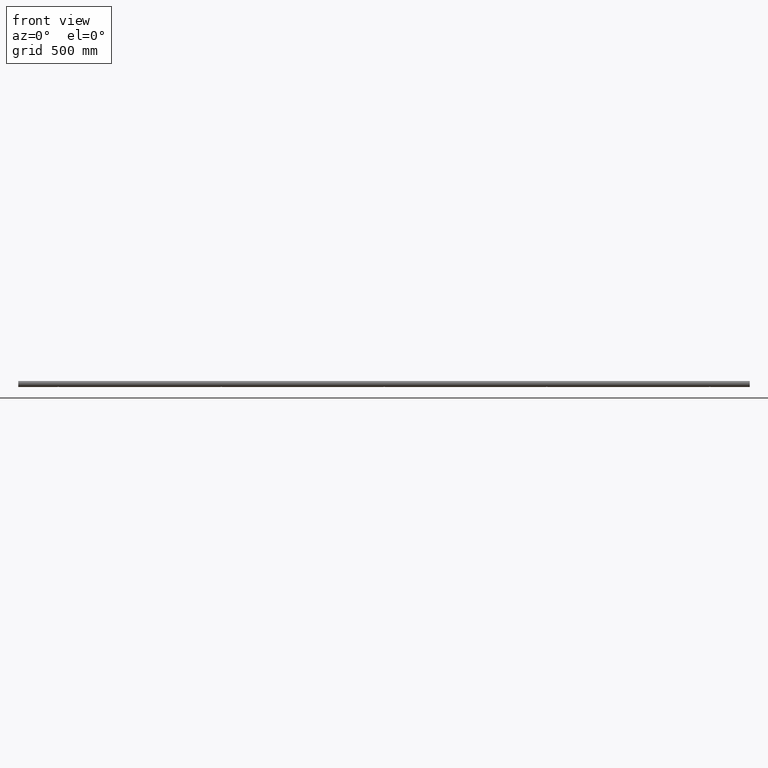
[diagram: clean part render]
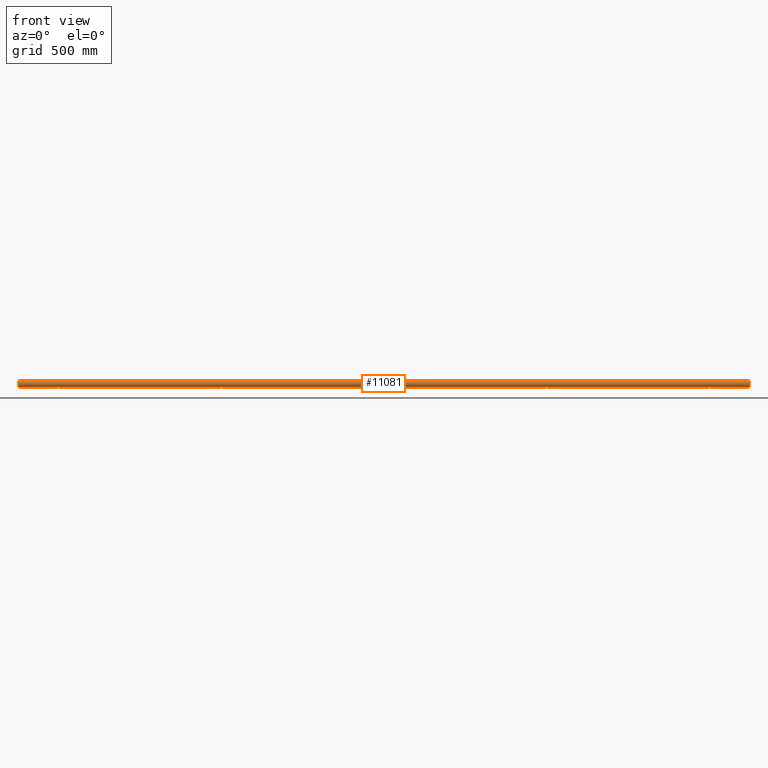
[diagram: same view with one face highlighted and labeled with its STEP entity id]
A machine part, front view. The second image highlights one B-rep face of the part: STEP entity #11081.
In plain terms, the highlighted cylindrical surface (edge-blend (fillet) strip) has radius 12.5 mm, axis along (-1, -0, -0).
Its self-contained STEP definition (entity closure, byte-faithful):
#106 = CARTESIAN_POINT ( 'NONE',  ( 2.090412540924479600, -2.718083123427877300, -12.20511272832640000 ) ) ;
#231 = CARTESIAN_POINT ( 'NONE',  ( 693.4000000000000900, 1.530817147818667500E-015, -12.50000000000000000 ) ) ;
#269 = EDGE_CURVE ( 'NONE', #14058, #1977, #1271, .T. ) ;
#306 = CARTESIAN_POINT ( 'NONE',  ( 1550.000000000000000, 0.0000000000000000000, 0.0000000000000000000 ) ) ;
#332 = DIRECTION ( 'NONE',  ( 0.0000000000000000000, 0.0000000000000000000, 1.000000000000000000 ) ) ;
#412 = VERTEX_POINT ( 'NONE', #3174 ) ;
#543 = CARTESIAN_POINT ( 'NONE',  ( -3.399999999999987900, -3.085611381634476200E-019, -12.50000000000000000 ) ) ;
#576 = EDGE_CURVE ( 'NONE', #9384, #15832, #13231, .T. ) ;
#585 = ORIENTED_EDGE ( 'NONE', *, *, #11902, .T. ) ;
#603 = CARTESIAN_POINT ( 'NONE',  ( -688.2830839163814300, -2.968529363370429100, -12.14369076542070200 ) ) ;
#648 = VERTEX_POINT ( 'NONE', #1802 ) ;
#655 = CARTESIAN_POINT ( 'NONE',  ( -690.2244276377462000, -3.399902734060280500, -12.02874313505274300 ) ) ;
#721 = VECTOR ( 'NONE', #1426, 1000.000000000000000 ) ;
#760 = CARTESIAN_POINT ( 'NONE',  ( -686.9451166598307700, -1.508976641703934500, -12.41029900232306300 ) ) ;
#820 = CARTESIAN_POINT ( 'NONE',  ( -690.4457652610850600, -3.378089484675303100, -12.03497327294810600 ) ) ;
#902 = EDGE_CURVE ( 'NONE', #14058, #412, #9172, .T. ) ;
#921 = CARTESIAN_POINT ( 'NONE',  ( 1378.294547359547300, -2.949803944381774300, -12.14763061015489300 ) ) ;
#927 = ORIENTED_EDGE ( 'NONE', *, *, #6808, .F. ) ;
#1011 = CARTESIAN_POINT ( 'NONE',  ( 692.7019317768557600, -2.075686207071268300, -12.32785800513539000 ) ) ;
#1046 = CARTESIAN_POINT ( 'NONE',  ( -3.377732997452060500, -0.4476042234037460000, -12.49389134214153100 ) ) ;
#1198 = CARTESIAN_POINT ( 'NONE',  ( 1.716916083618982300, -2.968529363370417500, -12.14369076542070800 ) ) ;
#1271 = LINE ( 'NONE', #2999, #11084 ) ;
#1280 = VERTEX_POINT ( 'NONE', #2318 ) ;
#1297 = VERTEX_POINT ( 'NONE', #11122 ) ;
#1317 = DIRECTION ( 'NONE',  ( 0.0000000000000000000, 0.0000000000000000000, -1.000000000000000000 ) ) ;
#1407 = CARTESIAN_POINT ( 'NONE',  ( -2.702327577358867700, -2.075249282755369200, -12.32794158140094100 ) ) ;
#1426 = DIRECTION ( 'NONE',  ( -1.000000000000000000, -0.0000000000000000000, -0.0000000000000000000 ) ) ;
#1639 = CARTESIAN_POINT ( 'NONE',  ( -1383.400000000000300, -0.2257922536967062200, -12.50000000000000000 ) ) ;
#1802 = CARTESIAN_POINT ( 'NONE',  ( -693.3999999999999800, 1.240253457150525300E-014, -12.50000000000000000 ) ) ;
#1828 = EDGE_CURVE ( 'NONE', #7669, #1977, #14576, .T. ) ;
#1977 = VERTEX_POINT ( 'NONE', #231 ) ;
#2049 = EDGE_CURVE ( 'NONE', #13836, #7710, #12762, .T. ) ;
#2066 = CARTESIAN_POINT ( 'NONE',  ( -1377.909587459075700, -2.718083123427898200, -12.20511272832639400 ) ) ;
#2081 = CARTESIAN_POINT ( 'NONE',  ( -687.0519466653322500, -1.708183272649670800, -12.38412960736629000 ) ) ;
#2175 = CARTESIAN_POINT ( 'NONE',  ( 1379.775572362253600, -3.399902734060398200, -12.02874313505270900 ) ) ;
#2199 = VECTOR ( 'NONE', #8029, 1000.000000000000000 ) ;
#2220 = CARTESIAN_POINT ( 'NONE',  ( 687.0508764755738900, -1.706430297025199200, -12.38438124661081100 ) ) ;
#2238 = CARTESIAN_POINT ( 'NONE',  ( 1376.600000000000100, -0.2257922536967062200, -12.50000000000000000 ) ) ;
#2273 = CARTESIAN_POINT ( 'NONE',  ( 692.9480533346683200, -1.708183272649670600, -12.38412960736629600 ) ) ;
#2289 = CARTESIAN_POINT ( 'NONE',  ( -1376.945116659831000, -1.508976641703940700, -12.41029900232306300 ) ) ;
#2303 = CARTESIAN_POINT ( 'NONE',  ( -3.224770506350070200, -1.100213052444122700, -12.45320411249670300 ) ) ;
#2318 = CARTESIAN_POINT ( 'NONE',  ( 3.399999999999987900, 1.530817148184698900E-015, -12.50000000000000000 ) ) ;
#2321 = CARTESIAN_POINT ( 'NONE',  ( 690.4480069142264300, -3.377710602246517100, -12.03507891894724400 ) ) ;
#2381 = CARTESIAN_POINT ( 'NONE',  ( 689.5542347389152800, -3.378089484675302700, -12.03497327294810600 ) ) ;
#2463 = VERTEX_POINT ( 'NONE', #11539 ) ;
#2475 = CARTESIAN_POINT ( 'NONE',  ( -1381.705452640452700, -2.949803944381774300, -12.14763061015489300 ) ) ;
#2523 = CARTESIAN_POINT ( 'NONE',  ( -1.705452640452510800, -2.949803944381699700, -12.14763061015491800 ) ) ;
#2549 = FACE_OUTER_BOUND ( 'NONE', #11408, .T. ) ;
#2577 = CARTESIAN_POINT ( 'NONE',  ( -2.076778553575692900, -2.701278004671923600, -12.20530089315860600 ) ) ;
#2689 = CARTESIAN_POINT ( 'NONE',  ( 3.289946059124464000, -0.8867016201782708100, -12.47044329820943200 ) ) ;
#2999 = CARTESIAN_POINT ( 'NONE',  ( 1550.000000000000000, 1.530808498934191500E-015, -12.50000000000000000 ) ) ;
#3174 = CARTESIAN_POINT ( 'NONE',  ( 1383.400000000000100, 1.530817149939125600E-015, -12.50000000000000000 ) ) ;
#3196 = CARTESIAN_POINT ( 'NONE',  ( -686.7747797971387600, -1.098761744103554900, -12.45332302889326900 ) ) ;
#3250 = CARTESIAN_POINT ( 'NONE',  ( -691.7054526404525600, -2.949803944381664600, -12.14763061015493100 ) ) ;
#3361 = CARTESIAN_POINT ( 'NONE',  ( -689.7785291907569000, -3.400096623084107900, -12.02868833097945100 ) ) ;
#3460 = CARTESIAN_POINT ( 'NONE',  ( -1376.599999999999900, -0.2225510969395967400, -12.50000000000000000 ) ) ;
#3461 = CARTESIAN_POINT ( 'NONE',  ( 1377.297672422640500, -2.075249282755465200, -12.32794158140092100 ) ) ;
#3500 = VECTOR ( 'NONE', #7631, 1000.000000000000000 ) ;
#3510 = CARTESIAN_POINT ( 'NONE',  ( -1379.115041381117200, -3.290362799234904000, -12.05925230465088800 ) ) ;
#3511 = CARTESIAN_POINT ( 'NONE',  ( 1382.090412540924900, -2.718083123427898200, -12.20511272832639400 ) ) ;
#3541 = CARTESIAN_POINT ( 'NONE',  ( -1380.224427637745300, -3.399902734060398200, -12.02874313505270900 ) ) ;
#3552 = CARTESIAN_POINT ( 'NONE',  ( 693.3777285827636700, -0.4482571319650472400, -12.49388896063694300 ) ) ;
#3606 = CARTESIAN_POINT ( 'NONE',  ( 688.8993935230674900, -3.224536294380859300, -12.07725403179794700 ) ) ;
#3654 = CARTESIAN_POINT ( 'NONE',  ( 693.0548833401692300, -1.508976641703934500, -12.41029900232306300 ) ) ;
#3686 = CARTESIAN_POINT ( 'NONE',  ( 3.399999999999987000, -0.2225510969395936800, -12.50000000000000000 ) ) ;
#3846 = CARTESIAN_POINT ( 'NONE',  ( 3.054883340169159300, -1.508976641703949000, -12.41029900232305900 ) ) ;
#4106 = DIRECTION ( 'NONE',  ( 0.0000000000000000000, 0.0000000000000000000, -1.000000000000000000 ) ) ;
#4186 = CARTESIAN_POINT ( 'NONE',  ( -1383.290681121150600, -0.8836557597777843200, -12.47063843226398400 ) ) ;
#4351 = CARTESIAN_POINT ( 'NONE',  ( -1550.000000000000000, 0.0000000000000000000, 12.50000000000000000 ) ) ;
#4491 = CARTESIAN_POINT ( 'NONE',  ( 1550.000000000000000, 1.530808498934191500E-015, -12.50000000000000000 ) ) ;
#4555 = CARTESIAN_POINT ( 'NONE',  ( -1383.053670010980300, -1.511526726006589200, -12.40999792042049600 ) ) ;
#4604 = CARTESIAN_POINT ( 'NONE',  ( 1383.377728582763900, -0.4482571319650909300, -12.49388896063694400 ) ) ;
#4620 = CARTESIAN_POINT ( 'NONE',  ( -691.5092891430321100, -3.054671048340733600, -12.12133177702797600 ) ) ;
#4655 = CARTESIAN_POINT ( 'NONE',  ( -1377.298068223144800, -2.075686207071323800, -12.32785800513537900 ) ) ;
#4656 = CARTESIAN_POINT ( 'NONE',  ( 1382.562011329120400, -2.246229744202111100, -12.29756642919713100 ) ) ;
#4713 = CARTESIAN_POINT ( 'NONE',  ( 1382.948053334668000, -1.708183272649724100, -12.38412960736628300 ) ) ;
#4717 = CARTESIAN_POINT ( 'NONE',  ( -1380.885184354465100, -3.290386587176945500, -12.05924650854999100 ) ) ;
#4753 = CARTESIAN_POINT ( 'NONE',  ( 689.1148156455342400, -3.290386587176774100, -12.05924650855003400 ) ) ;
#4777 = CARTESIAN_POINT ( 'NONE',  ( 1381.716916083619500, -2.968529363370432200, -12.14369076542070600 ) ) ;
#4812 = CARTESIAN_POINT ( 'NONE',  ( 693.2899460591244200, -0.8867016201782428300, -12.47044329820943000 ) ) ;
#4954 = CARTESIAN_POINT ( 'NONE',  ( 2.562011329120406100, -2.246229744202104900, -12.29756642919713400 ) ) ;
#5109 = CARTESIAN_POINT ( 'NONE',  ( -2.949123524426435800, -1.706430297025202800, -12.38438124661081100 ) ) ;
#5173 = CARTESIAN_POINT ( 'NONE',  ( 3.377728582763543000, -0.4482571319650707200, -12.49388896063694600 ) ) ;
#5291 = LINE ( 'NONE', #4491, #8814 ) ;
#5317 = AXIS2_PLACEMENT_3D ( 'NONE', #306, #11423, #4106 ) ;
#5392 = ORIENTED_EDGE ( 'NONE', *, *, #269, .F. ) ;
#5562 = CARTESIAN_POINT ( 'NONE',  ( -1383.400000000000100, -9.932824226667062300E-015, -12.50000000000000000 ) ) ;
#5623 = CARTESIAN_POINT ( 'NONE',  ( -693.3777329974520900, -0.4476042234037525000, -12.49389134214153400 ) ) ;
#5844 = CARTESIAN_POINT ( 'NONE',  ( -686.6000000000001400, -0.2225510969395918800, -12.50000000000000400 ) ) ;
#5882 = CARTESIAN_POINT ( 'NONE',  ( 1380.221470809242900, -3.400096623084209600, -12.02868833097941500 ) ) ;
#5892 = CARTESIAN_POINT ( 'NONE',  ( -688.9025609335545800, -3.225774224939495800, -12.07692960344454400 ) ) ;
#5904 = CARTESIAN_POINT ( 'NONE',  ( -1382.076778553575200, -2.701278004672001700, -12.20530089315858800 ) ) ;
#5993 = CARTESIAN_POINT ( 'NONE',  ( 1379.114815645534000, -3.290386587176945500, -12.05924650854999100 ) ) ;
#6184 = CARTESIAN_POINT ( 'NONE',  ( 693.2252202028615800, -1.098761744103555300, -12.45332302889326900 ) ) ;
#6229 = DIRECTION ( 'NONE',  ( 1.000000000000000000, 0.0000000000000000000, 0.0000000000000000000 ) ) ;
#6363 = CARTESIAN_POINT ( 'NONE',  ( 0.2214708092432761400, -3.400096623084132700, -12.02868833097944200 ) ) ;
#6379 = CARTESIAN_POINT ( 'NONE',  ( -1550.000000000000000, 0.0000000000000000000, 0.0000000000000000000 ) ) ;
#6477 = CIRCLE ( 'NONE', #8602, 12.50000000000000000 ) ;
#6695 = DIRECTION ( 'NONE',  ( -1.000000000000000000, -0.0000000000000000000, -0.0000000000000000000 ) ) ;
#6767 = B_SPLINE_CURVE_WITH_KNOTS ( 'NONE', 3,
 ( #9766, #8579, #1046, #9816, #2303, #11323, #5109, #1407, #13861, #7625, #2577, #2523, #8732, #15167, #12415, #9974, #16228, #6363, #11220, #12630, #10181, #1198, #106, #4954, #13704, #10133, #3846, #8837, #2689, #5173, #3686, #8895 ),
 .UNSPECIFIED., .F., .F.,
 ( 4, 2, 2, 2, 2, 2, 2, 2, 2, 2, 2, 2, 2, 2, 2, 4 ),
 ( 7.473672456940466300E-020, 0.0006675304755107752300, 0.001335060951021550200, 0.002002591426532325300, 0.002670121902043100100, 0.003337652377553874400, 0.004005182853064649700, 0.004672713328575424900, 0.005340243804086200100, 0.006007774279596974500, 0.006675304755107750600, 0.008010365706129299300, 0.008677896181640073700, 0.009345426657150846300, 0.01001295713266162100, 0.01068048760817239500 ),
 .UNSPECIFIED. ) ;
#6786 = ORIENTED_EDGE ( 'NONE', *, *, #9976, .T. ) ;
#6808 = EDGE_CURVE ( 'NONE', #1297, #14030, #13736, .T. ) ;
#6990 = CARTESIAN_POINT ( 'NONE',  ( -686.6000000000001400, 1.530817147818667500E-015, -12.50000000000000000 ) ) ;
#7024 = ORIENTED_EDGE ( 'NONE', *, *, #2049, .F. ) ;
#7081 = CARTESIAN_POINT ( 'NONE',  ( -1381.100606476932400, -3.224536294380904600, -12.07725403179793100 ) ) ;
#7093 = CARTESIAN_POINT ( 'NONE',  ( -687.2980682231448100, -2.075686207071267800, -12.32785800513538800 ) ) ;
#7130 = CARTESIAN_POINT ( 'NONE',  ( 1377.923221446424100, -2.701278004672001700, -12.20530089315858800 ) ) ;
#7219 = CARTESIAN_POINT ( 'NONE',  ( 689.7755723622542500, -3.399902734060280500, -12.02874313505274300 ) ) ;
#7269 = CARTESIAN_POINT ( 'NONE',  ( 690.8849586188831600, -3.290362799234757100, -12.05925230465093600 ) ) ;
#7290 = CARTESIAN_POINT ( 'NONE',  ( -1378.902560933554000, -3.225774224939542500, -12.07692960344453300 ) ) ;
#7292 = CARTESIAN_POINT ( 'NONE',  ( 1383.400000000000100, -0.2225510969395967400, -12.50000000000000000 ) ) ;
#7330 = ORIENTED_EDGE ( 'NONE', *, *, #902, .T. ) ;
#7335 = CARTESIAN_POINT ( 'NONE',  ( 692.0904125409247200, -2.718083123427828400, -12.20511272832640500 ) ) ;
#7390 = CARTESIAN_POINT ( 'NONE',  ( 691.7169160836188000, -2.968529363370429100, -12.14369076542070200 ) ) ;
#7415 = CARTESIAN_POINT ( 'NONE',  ( -1383.400000000000100, -9.932824226667062300E-015, -12.50000000000000000 ) ) ;
#7436 = CARTESIAN_POINT ( 'NONE',  ( 688.2945473595476600, -2.949803944381664200, -12.14763061015492900 ) ) ;
#7586 = EDGE_CURVE ( 'NONE', #9384, #2463, #8862, .T. ) ;
#7625 = CARTESIAN_POINT ( 'NONE',  ( -2.247283181778617000, -2.560938656392451200, -12.23588396395594200 ) ) ;
#7631 = DIRECTION ( 'NONE',  ( -1.000000000000000000, -0.0000000000000000000, -0.0000000000000000000 ) ) ;
#7669 = VERTEX_POINT ( 'NONE', #10010 ) ;
#7708 = CARTESIAN_POINT ( 'NONE',  ( 1550.000000000000000, 1.530808498934191500E-015, -12.50000000000000000 ) ) ;
#7710 = VERTEX_POINT ( 'NONE', #10877 ) ;
#8022 = CARTESIAN_POINT ( 'NONE',  ( -693.3999999999999800, 1.240253457150525300E-014, -12.50000000000000000 ) ) ;
#8029 = DIRECTION ( 'NONE',  ( -1.000000000000000000, -0.0000000000000000000, -0.0000000000000000000 ) ) ;
#8075 = CARTESIAN_POINT ( 'NONE',  ( -1383.377732997452300, -0.4476042234037826400, -12.49389134214153100 ) ) ;
#8203 = LINE ( 'NONE', #7708, #721 ) ;
#8243 = EDGE_CURVE ( 'NONE', #1297, #14933, #12874, .T. ) ;
#8297 = CARTESIAN_POINT ( 'NONE',  ( -692.5594400543210400, -2.248989797497585200, -12.29704468854005500 ) ) ;
#8311 = EDGE_CURVE ( 'NONE', #648, #2463, #8203, .T. ) ;
#8387 = CARTESIAN_POINT ( 'NONE',  ( 1380.448006914225700, -3.377710602246636600, -12.03507891894720800 ) ) ;
#8437 = CARTESIAN_POINT ( 'NONE',  ( -1377.437988670878900, -2.246229744202111100, -12.29756642919713100 ) ) ;
#8483 = CARTESIAN_POINT ( 'NONE',  ( 690.2214708092434400, -3.400096623084107000, -12.02868833097944700 ) ) ;
#8504 = CARTESIAN_POINT ( 'NONE',  ( 1379.554234738915300, -3.378089484675443900, -12.03497327294806500 ) ) ;
#8556 = CARTESIAN_POINT ( 'NONE',  ( -1376.710053940875200, -0.8867016201782891300, -12.47044329820942800 ) ) ;
#8579 = CARTESIAN_POINT ( 'NONE',  ( -3.399999999999987900, -0.2257922536967011100, -12.50000000000000200 ) ) ;
#8602 = AXIS2_PLACEMENT_3D ( 'NONE', #6379, #6229, #1317 ) ;
#8643 = CARTESIAN_POINT ( 'NONE',  ( 692.5620113291205400, -2.246229744202054700, -12.29756642919714300 ) ) ;
#8732 = CARTESIAN_POINT ( 'NONE',  ( -1.509289143032030800, -3.054671048340748700, -12.12133177702796900 ) ) ;
#8782 = VECTOR ( 'NONE', #13718, 1000.000000000000000 ) ;
#8814 = VECTOR ( 'NONE', #13246, 1000.000000000000000 ) ;
#8837 = CARTESIAN_POINT ( 'NONE',  ( 3.225220202861458100, -1.098761744103564900, -12.45332302889326700 ) ) ;
#8862 = B_SPLINE_CURVE_WITH_KNOTS ( 'NONE', 3,
 ( #5562, #1639, #8075, #4186, #12808, #4555, #14471, #11918, #15842, #15101, #5904, #2475, #9003, #7081, #4717, #14826, #3541, #15296, #13423, #3510, #7290, #12288, #2066, #8437, #4655, #16051, #2289, #12190, #8556, #13302, #3460, #11040 ),
 .UNSPECIFIED., .F., .F.,
 ( 4, 2, 2, 2, 2, 2, 2, 2, 2, 2, 2, 2, 2, 2, 2, 4 ),
 ( 9.720594809790037100E-018, 0.0006675304755108549200, 0.001335060951021700100, 0.002002591426532545100, 0.002670121902043390200, 0.003337652377554235300, 0.004005182853065080700, 0.004672713328575925400, 0.005340243804086770900, 0.006007774279597616300, 0.006675304755108461000, 0.008010365706129545700, 0.008677896181640320000, 0.009345426657151094400, 0.01001295713266186900, 0.01068048760817264100 ),
 .UNSPECIFIED. ) ;
#8895 = CARTESIAN_POINT ( 'NONE',  ( 3.399999999999987900, 1.530817148184698900E-015, -12.50000000000000000 ) ) ;
#9003 = CARTESIAN_POINT ( 'NONE',  ( -1381.509289143031500, -3.054671048340755300, -12.12133177702796700 ) ) ;
#9029 = AXIS2_PLACEMENT_3D ( 'NONE', #11564, #12880, #332 ) ;
#9135 = VECTOR ( 'NONE', #11506, 1000.000000000000000 ) ;
#9172 = B_SPLINE_CURVE_WITH_KNOTS ( 'NONE', 3,
 ( #12079, #2238, #13477, #10980, #14729, #12133, #12191, #3461, #14621, #16003, #7130, #921, #9696, #14838, #5993, #8504, #2175, #5882, #8387, #12249, #10929, #4777, #3511, #4656, #14789, #4713, #15889, #9642, #10820, #4604, #7292, #13523 ),
 .UNSPECIFIED., .F., .F.,
 ( 4, 2, 2, 2, 2, 2, 2, 2, 2, 2, 2, 2, 2, 2, 2, 4 ),
 ( 9.720594809790037100E-018, 0.0006675304755108549200, 0.001335060951021700100, 0.002002591426532545100, 0.002670121902043390200, 0.003337652377554235300, 0.004005182853065080700, 0.004672713328575925400, 0.005340243804086770900, 0.006007774279597616300, 0.006675304755108461000, 0.008010365706129545700, 0.008677896181640320000, 0.009345426657151094400, 0.01001295713266186900, 0.01068048760817264100 ),
 .UNSPECIFIED. ) ;
#9231 = CARTESIAN_POINT ( 'NONE',  ( -692.9491235244266800, -1.706430297025199700, -12.38438124661081300 ) ) ;
#9384 = VERTEX_POINT ( 'NONE', #7415 ) ;
#9399 = CARTESIAN_POINT ( 'NONE',  ( -686.6222714172365600, -0.4482571319650465700, -12.49388896063693900 ) ) ;
#9495 = CARTESIAN_POINT ( 'NONE',  ( -687.9095874590756200, -2.718083123427828900, -12.20511272832640700 ) ) ;
#9642 = CARTESIAN_POINT ( 'NONE',  ( 1383.225220202861200, -1.098761744103553800, -12.45332302889326900 ) ) ;
#9696 = CARTESIAN_POINT ( 'NONE',  ( 1378.490710856967600, -3.054671048340755300, -12.12133177702796700 ) ) ;
#9766 = CARTESIAN_POINT ( 'NONE',  ( -3.399999999999987900, -3.085611381634476200E-019, -12.50000000000000000 ) ) ;
#9778 = CARTESIAN_POINT ( 'NONE',  ( 687.2976724226414300, -2.075249282755358600, -12.32794158140094800 ) ) ;
#9816 = CARTESIAN_POINT ( 'NONE',  ( -3.290681121150602600, -0.8836557597777386900, -12.47063843226399100 ) ) ;
#9835 = CARTESIAN_POINT ( 'NONE',  ( 686.7093188788497900, -0.8836557597777396900, -12.47063843226399300 ) ) ;
#9891 = CARTESIAN_POINT ( 'NONE',  ( 691.0974390664461000, -3.225774224939494900, -12.07692960344454000 ) ) ;
#9974 = CARTESIAN_POINT ( 'NONE',  ( -0.4457652610848898400, -3.378089484675349800, -12.03497327294808800 ) ) ;
#9976 = EDGE_CURVE ( 'NONE', #648, #7710, #12334, .T. ) ;
#10010 = CARTESIAN_POINT ( 'NONE',  ( 686.6000000000002500, 1.240253457150525300E-014, -12.50000000000000000 ) ) ;
#10133 = CARTESIAN_POINT ( 'NONE',  ( 2.948053334667982000, -1.708183272649644200, -12.38412960736629700 ) ) ;
#10138 = CARTESIAN_POINT ( 'NONE',  ( 1376.600000000000100, -9.932824226667062300E-015, -12.50000000000000000 ) ) ;
#10142 = LINE ( 'NONE', #10355, #3500 ) ;
#10181 = CARTESIAN_POINT ( 'NONE',  ( 1.097439066445784300, -3.225774224939500300, -12.07692960344454400 ) ) ;
#10229 = ORIENTED_EDGE ( 'NONE', *, *, #1828, .T. ) ;
#10355 = CARTESIAN_POINT ( 'NONE',  ( 1550.000000000000000, 1.530808498934191500E-015, -12.50000000000000000 ) ) ;
#10365 = CARTESIAN_POINT ( 'NONE',  ( -693.4000000000000900, -0.2257922536966988400, -12.50000000000000000 ) ) ;
#10419 = CARTESIAN_POINT ( 'NONE',  ( -693.2906811211507800, -0.8836557597777396900, -12.47063843226399100 ) ) ;
#10468 = CARTESIAN_POINT ( 'NONE',  ( -692.7023275773588000, -2.075249282755359000, -12.32794158140094400 ) ) ;
#10483 = ORIENTED_EDGE ( 'NONE', *, *, #10917, .T. ) ;
#10820 = CARTESIAN_POINT ( 'NONE',  ( 1383.289946059124300, -0.8867016201782891300, -12.47044329820942800 ) ) ;
#10877 = CARTESIAN_POINT ( 'NONE',  ( -686.6000000000001400, 1.530817147818667500E-015, -12.50000000000000000 ) ) ;
#10917 = EDGE_CURVE ( 'NONE', #14933, #15832, #6477, .T. ) ;
#10929 = CARTESIAN_POINT ( 'NONE',  ( 1381.097439066445800, -3.225774224939542500, -12.07692960344453300 ) ) ;
#10964 = CARTESIAN_POINT ( 'NONE',  ( 687.4405599456791800, -2.248989797497584800, -12.29704468854005300 ) ) ;
#10980 = CARTESIAN_POINT ( 'NONE',  ( 1376.709318878849400, -0.8836557597777843200, -12.47063843226398400 ) ) ;
#11021 = CARTESIAN_POINT ( 'NONE',  ( 686.6222670025479100, -0.4476042234037524400, -12.49389134214153300 ) ) ;
#11040 = CARTESIAN_POINT ( 'NONE',  ( -1376.600000000000100, 1.530817149939125600E-015, -12.50000000000000000 ) ) ;
#11081 = ADVANCED_FACE ( 'NONE', ( #2549 ), #13530, .T. ) ;
#11084 = VECTOR ( 'NONE', #6695, 1000.000000000000000 ) ;
#11122 = CARTESIAN_POINT ( 'NONE',  ( 1550.000000000000000, 0.0000000000000000000, 12.50000000000000000 ) ) ;
#11171 = ORIENTED_EDGE ( 'NONE', *, *, #14016, .F. ) ;
#11186 = CARTESIAN_POINT ( 'NONE',  ( 687.7527168182215300, -2.560938656392412100, -12.23588396395595300 ) ) ;
#11220 = CARTESIAN_POINT ( 'NONE',  ( 0.4480069142262558800, -3.377710602246544200, -12.03507891894723500 ) ) ;
#11323 = CARTESIAN_POINT ( 'NONE',  ( -3.053670010980488400, -1.511526726006567000, -12.40999792042050700 ) ) ;
#11408 = EDGE_LOOP ( 'NONE', ( #11171, #927, #11412, #10483, #15815, #14538, #14462, #6786, #7024, #585, #16120, #10229, #5392, #7330 ) ) ;
#11412 = ORIENTED_EDGE ( 'NONE', *, *, #8243, .T. ) ;
#11423 = DIRECTION ( 'NONE',  ( 1.000000000000000000, 0.0000000000000000000, 0.0000000000000000000 ) ) ;
#11506 = DIRECTION ( 'NONE',  ( -1.000000000000000000, -0.0000000000000000000, -0.0000000000000000000 ) ) ;
#11539 = CARTESIAN_POINT ( 'NONE',  ( -1376.600000000000100, 1.530817149939125600E-015, -12.50000000000000000 ) ) ;
#11564 = CARTESIAN_POINT ( 'NONE',  ( 1550.000000000000000, 0.0000000000000000000, 0.0000000000000000000 ) ) ;
#11676 = CARTESIAN_POINT ( 'NONE',  ( -693.2247705063500700, -1.100213052444112500, -12.45320411249671000 ) ) ;
#11886 = CARTESIAN_POINT ( 'NONE',  ( -690.8851843544659900, -3.290386587176775000, -12.05924650855003800 ) ) ;
#11902 = EDGE_CURVE ( 'NONE', #13836, #1280, #6767, .T. ) ;
#11918 = CARTESIAN_POINT ( 'NONE',  ( -1382.702327577358600, -2.075249282755465200, -12.32794158140092100 ) ) ;
#12042 = CARTESIAN_POINT ( 'NONE',  ( -692.0767785535757600, -2.701278004671885800, -12.20530089315861700 ) ) ;
#12079 = CARTESIAN_POINT ( 'NONE',  ( 1376.600000000000100, -9.932824226667062300E-015, -12.50000000000000000 ) ) ;
#12098 = CARTESIAN_POINT ( 'NONE',  ( -692.2472831817788100, -2.560938656392413000, -12.23588396395595300 ) ) ;
#12133 = CARTESIAN_POINT ( 'NONE',  ( 1376.946329989019200, -1.511526726006589200, -12.40999792042049600 ) ) ;
#12190 = CARTESIAN_POINT ( 'NONE',  ( -1376.774779797138100, -1.098761744103553800, -12.45332302889326900 ) ) ;
#12191 = CARTESIAN_POINT ( 'NONE',  ( 1377.050876475573700, -1.706430297025295100, -12.38438124661079300 ) ) ;
#12228 = CARTESIAN_POINT ( 'NONE',  ( 688.4907108569682400, -3.054671048340733100, -12.12133177702797600 ) ) ;
#12249 = CARTESIAN_POINT ( 'NONE',  ( 1380.884958618882800, -3.290362799234904000, -12.05925230465088800 ) ) ;
#12276 = CARTESIAN_POINT ( 'NONE',  ( 693.4000000000002000, -0.2225510969395910800, -12.49999999999999800 ) ) ;
#12288 = CARTESIAN_POINT ( 'NONE',  ( -1378.283083916381700, -2.968529363370432200, -12.14369076542070600 ) ) ;
#12319 = EDGE_CURVE ( 'NONE', #7669, #1280, #5291, .T. ) ;
#12334 = B_SPLINE_CURVE_WITH_KNOTS ( 'NONE', 3,
 ( #8022, #10365, #5623, #10419, #11676, #15464, #9231, #10468, #8297, #12098, #12042, #3250, #4620, #14476, #11886, #820, #655, #3361, #14636, #13379, #5892, #603, #9495, #13319, #7093, #2081, #760, #3196, #15630, #9399, #5844, #6990 ),
 .UNSPECIFIED., .F., .F.,
 ( 4, 2, 2, 2, 2, 2, 2, 2, 2, 2, 2, 2, 2, 2, 2, 4 ),
 ( 1.197015388918840900E-017, 0.0006675304755108357300, 0.001335060951021659500, 0.002002591426532483600, 0.002670121902043307400, 0.003337652377554131200, 0.004005182853064955000, 0.004672713328575778800, 0.005340243804086602600, 0.006007774279597426400, 0.006675304755108250200, 0.008010365706129594200, 0.008677896181640266200, 0.009345426657150938300, 0.01001295713266161000, 0.01068048760817228200 ),
 .UNSPECIFIED. ) ;
#12382 = CARTESIAN_POINT ( 'NONE',  ( 686.6000000000002500, 1.240253457150525300E-014, -12.50000000000000000 ) ) ;
#12415 = CARTESIAN_POINT ( 'NONE',  ( -0.8851843544657876900, -3.290386587176837600, -12.05924650855002200 ) ) ;
#12439 = CARTESIAN_POINT ( 'NONE',  ( 687.9232214464245800, -2.701278004671885800, -12.20530089315861700 ) ) ;
#12540 = CARTESIAN_POINT ( 'NONE',  ( 1550.000000000000000, 0.0000000000000000000, 12.50000000000000000 ) ) ;
#12630 = CARTESIAN_POINT ( 'NONE',  ( 0.8849586188828703100, -3.290362799234785500, -12.05925230465093100 ) ) ;
#12762 = LINE ( 'NONE', #15250, #2199 ) ;
#12808 = CARTESIAN_POINT ( 'NONE',  ( -1383.224770506349800, -1.100213052444138300, -12.45320411249670100 ) ) ;
#12874 = LINE ( 'NONE', #12540, #8782 ) ;
#12880 = DIRECTION ( 'NONE',  ( -1.000000000000000000, -0.0000000000000000000, -0.0000000000000000000 ) ) ;
#13231 = LINE ( 'NONE', #14045, #9135 ) ;
#13246 = DIRECTION ( 'NONE',  ( -1.000000000000000000, -0.0000000000000000000, -0.0000000000000000000 ) ) ;
#13302 = CARTESIAN_POINT ( 'NONE',  ( -1376.622271417237000, -0.4482571319650909300, -12.49388896063694400 ) ) ;
#13319 = CARTESIAN_POINT ( 'NONE',  ( -687.4379886708796900, -2.246229744202055100, -12.29756642919714700 ) ) ;
#13379 = CARTESIAN_POINT ( 'NONE',  ( -689.1150413811170700, -3.290362799234757900, -12.05925230465093800 ) ) ;
#13423 = CARTESIAN_POINT ( 'NONE',  ( -1379.551993085773600, -3.377710602246636600, -12.03507891894720800 ) ) ;
#13477 = CARTESIAN_POINT ( 'NONE',  ( 1376.622267002547900, -0.4476042234037826400, -12.49389134214153100 ) ) ;
#13523 = CARTESIAN_POINT ( 'NONE',  ( 1383.400000000000100, 1.530817149939125600E-015, -12.50000000000000000 ) ) ;
#13530 = CYLINDRICAL_SURFACE ( 'NONE', #9029, 12.50000000000000000 ) ;
#13672 = CARTESIAN_POINT ( 'NONE',  ( 686.6000000000004800, -0.2257922536966986700, -12.50000000000000000 ) ) ;
#13704 = CARTESIAN_POINT ( 'NONE',  ( 2.701931776855448100, -2.075686207071247800, -12.32785800513539300 ) ) ;
#13718 = DIRECTION ( 'NONE',  ( -1.000000000000000000, -0.0000000000000000000, -0.0000000000000000000 ) ) ;
#13736 = CIRCLE ( 'NONE', #5317, 12.50000000000000000 ) ;
#13836 = VERTEX_POINT ( 'NONE', #543 ) ;
#13861 = CARTESIAN_POINT ( 'NONE',  ( -2.559440054320827300, -2.248989797497623400, -12.29704468854004800 ) ) ;
#14016 = EDGE_CURVE ( 'NONE', #14030, #412, #10142, .T. ) ;
#14030 = VERTEX_POINT ( 'NONE', #14095 ) ;
#14045 = CARTESIAN_POINT ( 'NONE',  ( 1550.000000000000000, 1.530808498934191500E-015, -12.50000000000000000 ) ) ;
#14058 = VERTEX_POINT ( 'NONE', #10138 ) ;
#14095 = CARTESIAN_POINT ( 'NONE',  ( 1550.000000000000000, 1.530808498934191500E-015, -12.50000000000000000 ) ) ;
#14462 = ORIENTED_EDGE ( 'NONE', *, *, #8311, .F. ) ;
#14471 = CARTESIAN_POINT ( 'NONE',  ( -1382.949123524426300, -1.706430297025295100, -12.38438124661079300 ) ) ;
#14476 = CARTESIAN_POINT ( 'NONE',  ( -691.1006064769327400, -3.224536294380859800, -12.07725403179795100 ) ) ;
#14538 = ORIENTED_EDGE ( 'NONE', *, *, #7586, .T. ) ;
#14576 = B_SPLINE_CURVE_WITH_KNOTS ( 'NONE', 3,
 ( #12382, #13672, #11021, #9835, #14711, #16143, #2220, #9778, #10964, #11186, #12439, #7436, #12228, #3606, #4753, #2381, #7219, #8483, #2321, #7269, #9891, #7390, #7335, #8643, #1011, #2273, #3654, #6184, #4812, #3552, #12276, #14928 ),
 .UNSPECIFIED., .F., .F.,
 ( 4, 2, 2, 2, 2, 2, 2, 2, 2, 2, 2, 2, 2, 2, 2, 4 ),
 ( 1.197015388918840900E-017, 0.0006675304755107222200, 0.001335060951021432500, 0.002002591426532143100, 0.002670121902042853300, 0.003337652377553563000, 0.004005182853064274100, 0.004672713328574984300, 0.005340243804085694500, 0.006007774279596404600, 0.006675304755107113900, 0.008010365706128837900, 0.008677896181639699000, 0.009345426657150558400, 0.01001295713266142100, 0.01068048760817228200 ),
 .UNSPECIFIED. ) ;
#14621 = CARTESIAN_POINT ( 'NONE',  ( 1377.440559945679100, -2.248989797497722900, -12.29704468854002600 ) ) ;
#14636 = CARTESIAN_POINT ( 'NONE',  ( -689.5519930857736900, -3.377710602246517100, -12.03507891894724400 ) ) ;
#14711 = CARTESIAN_POINT ( 'NONE',  ( 686.7752294936502700, -1.100213052444112300, -12.45320411249670800 ) ) ;
#14729 = CARTESIAN_POINT ( 'NONE',  ( 1376.775229493650200, -1.100213052444138300, -12.45320411249670100 ) ) ;
#14789 = CARTESIAN_POINT ( 'NONE',  ( 1382.701931776856100, -2.075686207071323800, -12.32785800513537900 ) ) ;
#14826 = CARTESIAN_POINT ( 'NONE',  ( -1380.445765261084700, -3.378089484675443900, -12.03497327294806500 ) ) ;
#14838 = CARTESIAN_POINT ( 'NONE',  ( 1378.899393523067600, -3.224536294380904600, -12.07725403179793100 ) ) ;
#14928 = CARTESIAN_POINT ( 'NONE',  ( 693.4000000000000900, 1.530817147818667500E-015, -12.50000000000000000 ) ) ;
#14933 = VERTEX_POINT ( 'NONE', #4351 ) ;
#15101 = CARTESIAN_POINT ( 'NONE',  ( -1382.247283181778600, -2.560938656392545800, -12.23588396395591700 ) ) ;
#15167 = CARTESIAN_POINT ( 'NONE',  ( -1.100606476932582500, -3.224536294380879700, -12.07725403179794600 ) ) ;
#15250 = CARTESIAN_POINT ( 'NONE',  ( 1550.000000000000000, 1.530808498934191500E-015, -12.50000000000000000 ) ) ;
#15296 = CARTESIAN_POINT ( 'NONE',  ( -1379.778529190756200, -3.400096623084209600, -12.02868833097941500 ) ) ;
#15464 = CARTESIAN_POINT ( 'NONE',  ( -693.0536700109805700, -1.511526726006549000, -12.40999792042050500 ) ) ;
#15468 = CARTESIAN_POINT ( 'NONE',  ( -1550.000000000000000, 1.530808498934191500E-015, -12.50000000000000000 ) ) ;
#15630 = CARTESIAN_POINT ( 'NONE',  ( -686.7100539408758100, -0.8867016201782437200, -12.47044329820943200 ) ) ;
#15815 = ORIENTED_EDGE ( 'NONE', *, *, #576, .F. ) ;
#15832 = VERTEX_POINT ( 'NONE', #15468 ) ;
#15842 = CARTESIAN_POINT ( 'NONE',  ( -1382.559440054320700, -2.248989797497722900, -12.29704468854002600 ) ) ;
#15889 = CARTESIAN_POINT ( 'NONE',  ( 1383.054883340169700, -1.508976641703940700, -12.41029900232306300 ) ) ;
#16003 = CARTESIAN_POINT ( 'NONE',  ( 1377.752716818221400, -2.560938656392545800, -12.23588396395591700 ) ) ;
#16051 = CARTESIAN_POINT ( 'NONE',  ( -1377.051946665332000, -1.708183272649724100, -12.38412960736628300 ) ) ;
#16120 = ORIENTED_EDGE ( 'NONE', *, *, #12319, .F. ) ;
#16143 = CARTESIAN_POINT ( 'NONE',  ( 686.9463299890197700, -1.511526726006549200, -12.40999792042050500 ) ) ;
#16228 = CARTESIAN_POINT ( 'NONE',  ( -0.2244276377459111500, -3.399902734060312100, -12.02874313505273700 ) ) ;